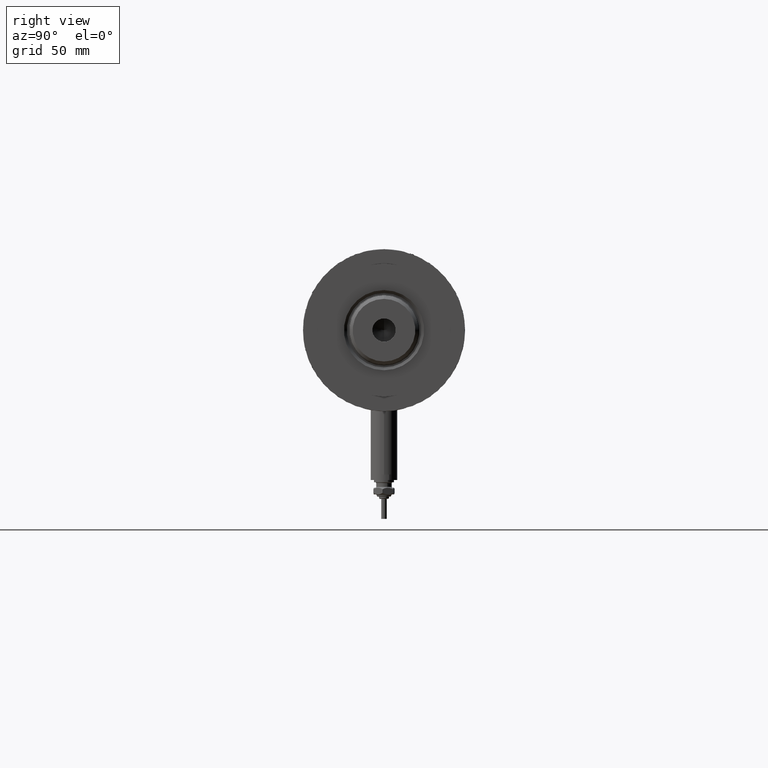
[diagram: clean part render]
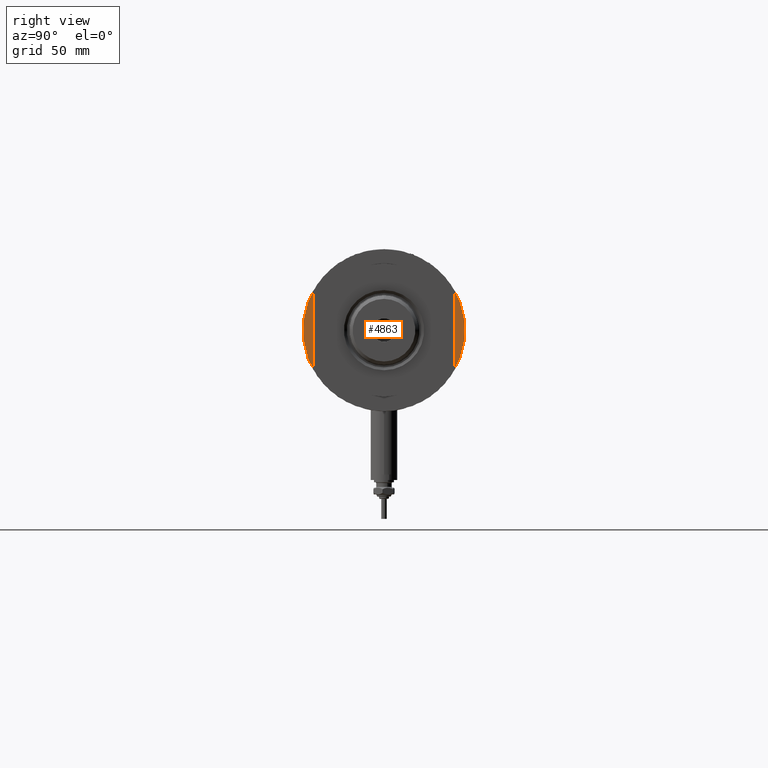
[diagram: same view with one face highlighted and labeled with its STEP entity id]
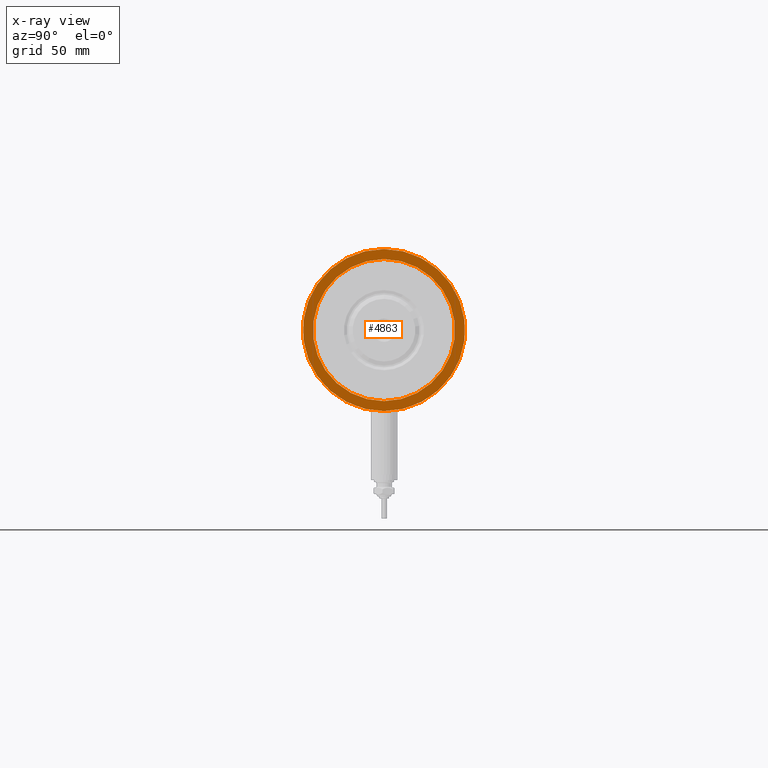
[diagram: x-ray of the same camera — body ghosted, the highlighted face saturated]
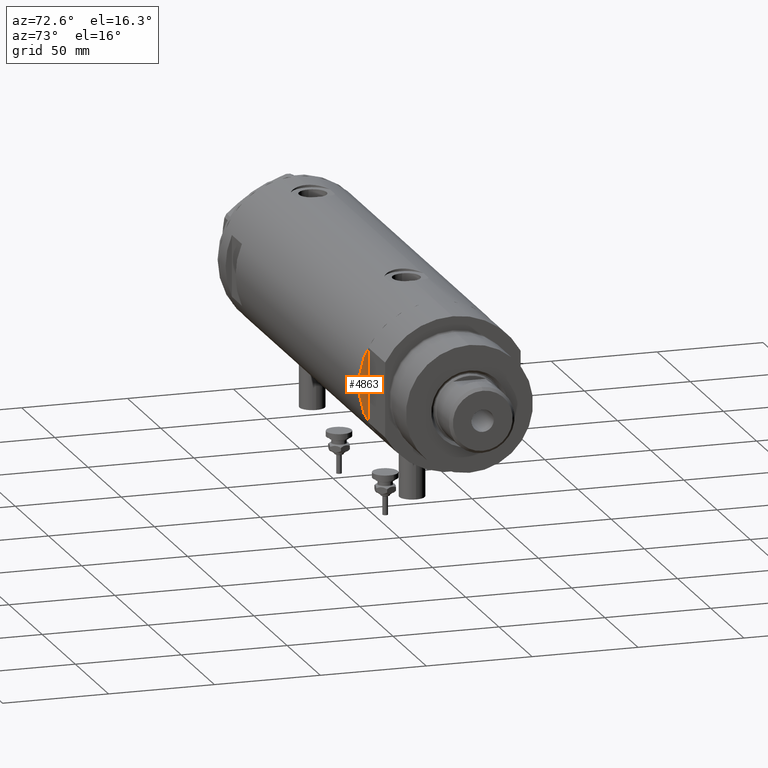
[diagram: same view with one face highlighted and labeled with its STEP entity id]
A machine part, right view. The second image highlights one B-rep face of the part: STEP entity #4863.
The next image is the same camera in x-ray: the body ghosted, the highlighted face saturated — about 0% of this face is hidden behind the body in this view.
A second angle (auxiliary view) of the same face is appended — the face is thin or edge-on in the first view.
In plain terms, the highlighted planar face has unit normal (-1, -0, 0).
Its self-contained STEP definition (entity closure, byte-faithful):
#28 = ORIENTED_EDGE ( 'NONE', *, *, #3281, .F. ) ;
#128 = VERTEX_POINT ( 'NONE', #729 ) ;
#427 = DIRECTION ( 'NONE',  ( 0.000000000000000000, 0.000000000000000000, -1.000000000000000000 ) ) ;
#526 = AXIS2_PLACEMENT_3D ( 'NONE', #3354, #2850, #2906 ) ;
#729 = CARTESIAN_POINT ( 'NONE',  ( -32.00000000000000000, 0.000000000000000000, -105.4000000000000057 ) ) ;
#1118 = CIRCLE ( 'NONE', #4933, 36.50000000000000000 ) ;
#1270 = DIRECTION ( 'NONE',  ( -1.000000000000000000, 0.000000000000000000, 0.000000000000000000 ) ) ;
#1274 = CARTESIAN_POINT ( 'NONE',  ( 0.000000000000000000, 0.000000000000000000, -105.4000000000000057 ) ) ;
#1336 = DIRECTION ( 'NONE',  ( 1.000000000000000000, 0.000000000000000000, 0.000000000000000000 ) ) ;
#1400 = AXIS2_PLACEMENT_3D ( 'NONE', #1531, #2059, #4351 ) ;
#1428 = AXIS2_PLACEMENT_3D ( 'NONE', #1274, #4307, #3408 ) ;
#1468 = CARTESIAN_POINT ( 'NONE',  ( -36.50000000000000000, 4.469960816887837641E-15, -105.4000000000000057 ) ) ;
#1516 = EDGE_CURVE ( 'NONE', #3160, #5086, #1118, .T. ) ;
#1531 = CARTESIAN_POINT ( 'NONE',  ( 0.000000000000000000, 0.000000000000000000, -105.4000000000000057 ) ) ;
#1772 = EDGE_CURVE ( 'NONE', #4120, #128, #5819, .T. ) ;
#2059 = DIRECTION ( 'NONE',  ( 0.000000000000000000, 0.000000000000000000, 1.000000000000000000 ) ) ;
#2118 = CARTESIAN_POINT ( 'NONE',  ( 0.000000000000000000, 0.000000000000000000, -105.4000000000000057 ) ) ;
#2316 = ORIENTED_EDGE ( 'NONE', *, *, #1516, .F. ) ;
#2368 = FACE_BOUND ( 'NONE', #4362, .T. ) ;
#2850 = DIRECTION ( 'NONE',  ( 0.000000000000000000, 0.000000000000000000, -1.000000000000000000 ) ) ;
#2906 = DIRECTION ( 'NONE',  ( -1.000000000000000000, 0.000000000000000000, 0.000000000000000000 ) ) ;
#2987 = EDGE_LOOP ( 'NONE', ( #28, #2316 ) ) ;
#3077 = EDGE_CURVE ( 'NONE', #128, #4120, #5122, .T. ) ;
#3160 = VERTEX_POINT ( 'NONE', #1468 ) ;
#3281 = EDGE_CURVE ( 'NONE', #5086, #3160, #3494, .T. ) ;
#3354 = CARTESIAN_POINT ( 'NONE',  ( 0.000000000000000000, 0.000000000000000000, -105.4000000000000057 ) ) ;
#3408 = DIRECTION ( 'NONE',  ( 1.000000000000000000, 0.000000000000000000, -0.000000000000000000 ) ) ;
#3455 = ORIENTED_EDGE ( 'NONE', *, *, #3077, .F. ) ;
#3494 = CIRCLE ( 'NONE', #1400, 36.50000000000000000 ) ;
#4120 = VERTEX_POINT ( 'NONE', #5195 ) ;
#4178 = FACE_OUTER_BOUND ( 'NONE', #2987, .T. ) ;
#4193 = CARTESIAN_POINT ( 'NONE',  ( 36.50000000000000000, 0.000000000000000000, -105.4000000000000057 ) ) ;
#4307 = DIRECTION ( 'NONE',  ( 0.000000000000000000, 0.000000000000000000, 1.000000000000000000 ) ) ;
#4351 = DIRECTION ( 'NONE',  ( 1.000000000000000000, 0.000000000000000000, 0.000000000000000000 ) ) ;
#4358 = AXIS2_PLACEMENT_3D ( 'NONE', #4905, #427, #1270 ) ;
#4362 = EDGE_LOOP ( 'NONE', ( #3455, #5733 ) ) ;
#4863 = ADVANCED_FACE ( 'NONE', ( #2368, #4178 ), #5584, .F. ) ;
#4905 = CARTESIAN_POINT ( 'NONE',  ( 0.000000000000000000, 0.000000000000000000, -105.4000000000000057 ) ) ;
#4933 = AXIS2_PLACEMENT_3D ( 'NONE', #2118, #5402, #1336 ) ;
#5086 = VERTEX_POINT ( 'NONE', #4193 ) ;
#5122 = CIRCLE ( 'NONE', #526, 32.00000000000000000 ) ;
#5195 = CARTESIAN_POINT ( 'NONE',  ( 32.00000000000000000, 3.918869757271530263E-15, -105.4000000000000057 ) ) ;
#5402 = DIRECTION ( 'NONE',  ( 0.000000000000000000, 0.000000000000000000, 1.000000000000000000 ) ) ;
#5584 = PLANE ( 'NONE',  #1428 ) ;
#5733 = ORIENTED_EDGE ( 'NONE', *, *, #1772, .F. ) ;
#5819 = CIRCLE ( 'NONE', #4358, 32.00000000000000000 ) ;